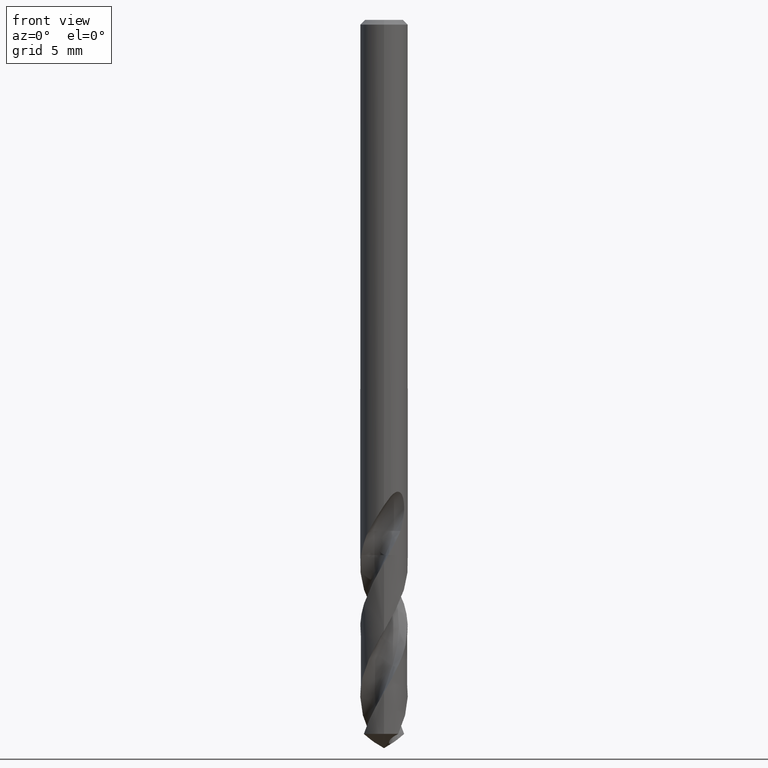
[diagram: clean part render]
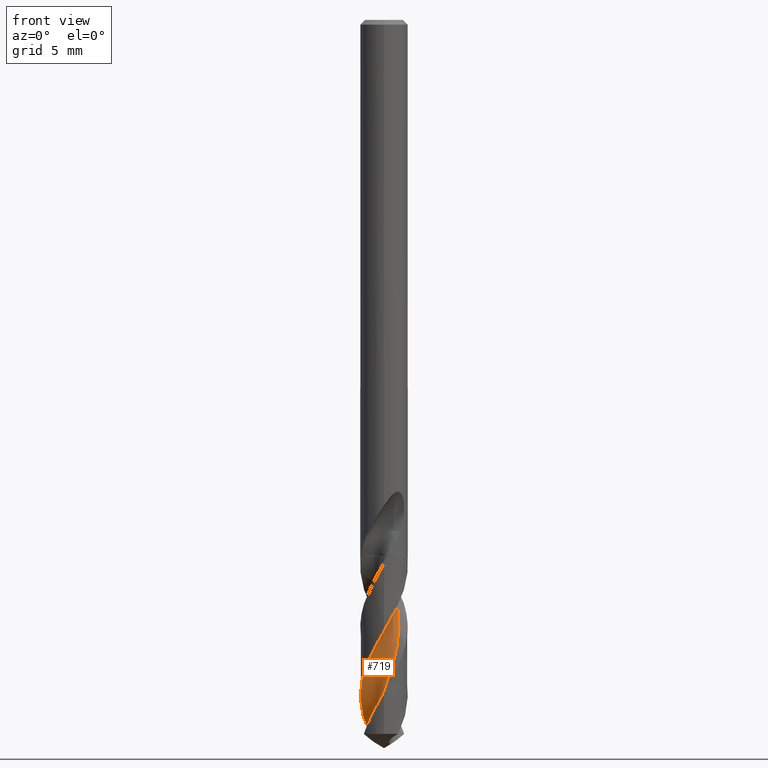
[diagram: same view with one face highlighted and labeled with its STEP entity id]
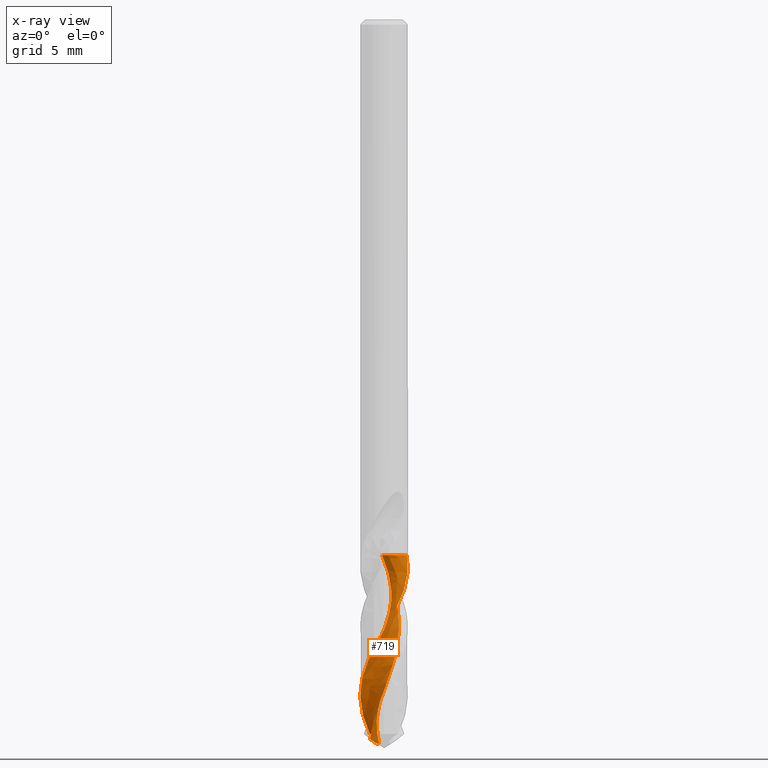
[diagram: x-ray of the same camera — body ghosted, the highlighted face saturated]
A machine part, front view. The second image highlights one B-rep face of the part: STEP entity #719.
The next image is the same camera in x-ray: the body ghosted, the highlighted face saturated — about 0% of this face is hidden behind the body in this view.
In plain terms, the highlighted face is a freeform B-spline surface patch.
Its self-contained STEP definition (entity closure, byte-faithful):
#313=VERTEX_POINT('',#808);
#391=VERTEX_POINT('',#895);
#421=EDGE_CURVE('',#603,#701,#930,.T.);
#461=EDGE_CURVE('',#701,#717,#971,.T.);
#537=EDGE_CURVE('',#313,#603,#1053,.T.);
#553=EDGE_CURVE('',#717,#391,#1070,.T.);
#603=VERTEX_POINT('',#1126);
#641=EDGE_CURVE('',#391,#313,#1167,.T.);
#701=VERTEX_POINT('',#1232);
#717=VERTEX_POINT('',#1250);
#719=ADVANCED_FACE('',(#1252),#1253,.F.);
#808=CARTESIAN_POINT('',(-0.875671009248674,-0.358797937121052,-45.4313890919469));
#895=CARTESIAN_POINT('',(-0.130612846565467,0.933550851839637,-33.805));
#930=B_SPLINE_CURVE_WITH_KNOTS('',3,(#2640,#2641,#2642,#2643,#2644,#2645,#2646,#2647,#2648,#2649,#2650,#2651,#2652,#2653,#2654,#2655,#2656,#2657,#2658,#2659,#2660,#2661,#2662,#2663,#2664,#2665,#2666,#2667,#2668,#2669,#2670,#2671,#2672,#2673,#2674,#2675,#2676,#2677,#2678,#2679,#2680,#2681,#2682,#2683,#2684,#2685,#2686,#2687,#2688,#2689,#2690,#2691,#2692,#2693,#2694,#2695,#2696,#2697,#2698,#2699,#2700,#2701,#2702,#2703,#2704,#2705,#2706,#2707,#2708,#2709,#2710,#2711),.UNSPECIFIED.,.F.,.F.,(4,2,2,2,2,2,2,2,2,2,2,2,2,2,2,2,2,2,2,2,2,2,2,2,2,2,2,2,2,2,2,2,2,2,2,4),(0.0,0.587548931270342,1.17219633530945,1.75708313733008,2.04868303654778,2.54372425060328,2.79175573145035,3.03846331591425,3.5338127022504,3.78198925935758,4.02889593470141,4.52456850894429,4.77291035589917,5.01998875941831,5.51600228871473,5.76453198042629,6.01182225928897,6.50821840966028,6.75696213142877,7.00450244078225,7.50135093124239,7.75032123867676,7.99810337937848,8.49541238624721,8.74462920359577,8.99267641956067,9.49050599480591,9.71589158313354,10.1366187539142,10.8767489687935,10.9112839413316,11.4568183166256,11.8662820788644,11.9045921760431,12.4995940372104,13.0926342426759),.UNSPECIFIED.);
#971=B_SPLINE_CURVE_WITH_KNOTS('',3,(#2834,#2835,#2836,#2837,#2838,#2839,#2840,#2841,#2842,#2843,#2844,#2845,#2846,#2847,#2848,#2849,#2850,#2851,#2852,#2853,#2854,#2855,#2856,#2857,#2858,#2859,#2860,#2861,#2862,#2863,#2864,#2865,#2866,#2867,#2868,#2869,#2870,#2871,#2872,#2873,#2874,#2875,#2876,#2877,#2878,#2879,#2880,#2881,#2882,#2883,#2884,#2885,#2886,#2887,#2888,#2889,#2890,#2891,#2892,#2893,#2894,#2895,#2896,#2897,#2898,#2899,#2900,#2901,#2902,#2903,#2904,#2905),.UNSPECIFIED.,.F.,.F.,(4,2,2,2,2,2,2,2,2,2,2,2,2,2,2,2,2,2,2,2,2,2,2,2,2,2,2,2,2,2,2,2,2,2,2,4),(0.0,0.587548931270342,1.17219633530945,1.75708313733008,2.04868303654778,2.54372425060328,2.79175573145035,3.03846331591425,3.5338127022504,3.78198925935758,4.02889593470141,4.52456850894429,4.77291035589917,5.01998875941831,5.51600228871473,5.76453198042629,6.01182225928897,6.50821840966028,6.75696213142877,7.00450244078225,7.50135093124239,7.75032123867676,7.99810337937848,8.49541238624721,8.74462920359577,8.99267641956067,9.49050599480591,9.71589158313354,10.1366187539142,10.8767489687935,10.9112839413316,11.4568183166256,11.8662820788644,11.9045921760431,12.4995940372104,13.0926342426759),.UNSPECIFIED.);
#1053=B_SPLINE_CURVE_WITH_KNOTS('',3,(#3696,#3697,#3698,#3699,#3700,#3701,#3702,#3703,#3704,#3705,#3706,#3707,#3708,#3709,#3710,#3711,#3712,#3713,#3714,#3715,#3716,#3717),.UNSPECIFIED.,.F.,.F.,(4,2,2,2,2,2,2,2,2,2,4),(0.0,0.514910052606813,1.01150946311538,1.40950740411287,1.76344501784753,2.215738572473,2.75041238733939,3.38622895188545,4.1169813170863,4.67060235264904,5.22109569334286),.UNSPECIFIED.);
#1070=B_SPLINE_CURVE_WITH_KNOTS('',3,(#3807,#3808,#3809,#3810,#3811,#3812,#3813,#3814,#3815,#3816,#3817,#3818,#3819,#3820,#3821,#3822,#3823,#3824,#3825,#3826),.UNSPECIFIED.,.F.,.F.,(4,2,2,2,2,2,2,2,2,4),(-3.15012089561457,-2.94171853489248,-2.73327283325108,-2.34242692870551,-1.95163046631387,-1.56106156288589,-1.17076573659799,-0.780627496579196,-0.390434775371609,-0.0),.UNSPECIFIED.);
#1126=CARTESIAN_POINT('',(-0.898964889177855,1.20077563600593,-45.0987090714587));
#1167=B_SPLINE_CURVE_WITH_KNOTS('',3,(#5006,#5007,#5008,#5009,#5010,#5011,#5012,#5013,#5014,#5015,#5016,#5017,#5018,#5019,#5020,#5021,#5022,#5023,#5024,#5025,#5026,#5027,#5028,#5029,#5030,#5031,#5032,#5033,#5034,#5035,#5036,#5037,#5038,#5039,#5040,#5041,#5042,#5043),.UNSPECIFIED.,.F.,.F.,(4,1,2,1,2,2,2,2,2,2,2,2,2,2,2,2,2,2,2,4),(0.0,0.27547260172825,0.550945203456499,1.101890406913,1.6528356103695,2.203780813826,3.30567122073899,4.40756162765199,5.50945203456499,6.61134244147799,7.71323284839099,8.81512325530399,9.91701366221698,11.01890406913,12.120794476043,13.222684882956,14.324575289869,15.426465696782,16.528356103695,17.630246510608),.UNSPECIFIED.);
#1232=CARTESIAN_POINT('',(6.46926910612253E-016,-1.49994239917647,-38.5905595988041));
#1250=CARTESIAN_POINT('',(1.44704588961921,0.394662310633732,-33.805));
#1252=FACE_OUTER_BOUND('',#5530,.T.);
#1253=B_SPLINE_SURFACE_WITH_KNOTS('',3,3,((#5531,#5532,#5533,#5534,#5535,#5536,#5537,#5538,#5539,#5540,#5541,#5542,#5543,#5544,#5545,#5546,#5547,#5548,#5549,#5550,#5551,#5552,#5553,#5554,#5555,#5556,#5557,#5558,#5559,#5560,#5561,#5562,#5563,#5564,#5565,#5566,#5567,#5568),(#5569,#5570,#5571,#5572,#5573,#5574,#5575,#5576,#5577,#5578,#5579,#5580,#5581,#5582,#5583,#5584,#5585,#5586,#5587,#5588,#5589,#5590,#5591,#5592,#5593,#5594,#5595,#5596,#5597,#5598,#5599,#5600,#5601,#5602,#5603,#5604,#5605,#5606),(#5607,#5608,#5609,#5610,#5611,#5612,#5613,#5614,#5615,#5616,#5617,#5618,#5619,#5620,#5621,#5622,#5623,#5624,#5625,#5626,#5627,#5628,#5629,#5630,#5631,#5632,#5633,#5634,#5635,#5636,#5637,#5638,#5639,#5640,#5641,#5642,#5643,#5644),(#5645,#5646,#5647,#5648,#5649,#5650,#5651,#5652,#5653,#5654,#5655,#5656,#5657,#5658,#5659,#5660,#5661,#5662,#5663,#5664,#5665,#5666,#5667,#5668,#5669,#5670,#5671,#5672,#5673,#5674,#5675,#5676,#5677,#5678,#5679,#5680,#5681,#5682),(#5683,#5684,#5685,#5686,#5687,#5688,#5689,#5690,#5691,#5692,#5693,#5694,#5695,#5696,#5697,#5698,#5699,#5700,#5701,#5702,#5703,#5704,#5705,#5706,#5707,#5708,#5709,#5710,#5711,#5712,#5713,#5714,#5715,#5716,#5717,#5718,#5719,#5720),(#5721,#5722,#5723,#5724,#5725,#5726,#5727,#5728,#5729,#5730,#5731,#5732,#5733,#5734,#5735,#5736,#5737,#5738,#5739,#5740,#5741,#5742,#5743,#5744,#5745,#5746,#5747,#5748,#5749,#5750,#5751,#5752,#5753,#5754,#5755,#5756,#5757,#5758),(#5759,#5760,#5761,#5762,#5763,#5764,#5765,#5766,#5767,#5768,#5769,#5770,#5771,#5772,#5773,#5774,#5775,#5776,#5777,#5778,#5779,#5780,#5781,#5782,#5783,#5784,#5785,#5786,#5787,#5788,#5789,#5790,#5791,#5792,#5793,#5794,#5795,#5796),(#5797,#5798,#5799,#5800,#5801,#5802,#5803,#5804,#5805,#5806,#5807,#5808,#5809,#5810,#5811,#5812,#5813,#5814,#5815,#5816,#5817,#5818,#5819,#5820,#5821,#5822,#5823,#5824,#5825,#5826,#5827,#5828,#5829,#5830,#5831,#5832,#5833,#5834),(#5835,#5836,#5837,#5838,#5839,#5840,#5841,#5842,#5843,#5844,#5845,#5846,#5847,#5848,#5849,#5850,#5851,#5852,#5853,#5854,#5855,#5856,#5857,#5858,#5859,#5860,#5861,#5862,#5863,#5864,#5865,#5866,#5867,#5868,#5869,#5870,#5871,#5872)),.UNSPECIFIED.,.F.,.F.,.F.,(4,1,1,1,1,1,4),(4,1,2,1,2,2,2,2,2,2,2,2,2,2,2,2,2,2,2,4),(-4.49266275223681E-017,0.589053925849164,1.17810785169833,1.76716177754749,2.35621570339666,2.74891832062943,3.14162093786221),(0.0,0.27547260172825,0.550945203456499,1.101890406913,1.6528356103695,2.203780813826,3.30567122073899,4.40756162765199,5.50945203456499,6.61134244147799,7.71323284839099,8.81512325530399,9.91701366221698,11.01890406913,12.120794476043,13.222684882956,14.324575289869,15.426465696782,16.528356103695,17.630246510608),.UNSPECIFIED.);
#2640=CARTESIAN_POINT('',(-0.898964889177857,1.20077563600593,-45.0987090714586));
#2641=CARTESIAN_POINT('',(-0.97680051497333,1.14250184227968,-44.9287006502512));
#2642=CARTESIAN_POINT('',(-1.04899950517055,1.07664198458802,-44.760009289105));
#2643=CARTESIAN_POINT('',(-1.17960625681869,0.931656461997672,-44.42164619341));
#2644=CARTESIAN_POINT('',(-1.23753883157774,0.853196197475255,-44.2525407343408));
#2645=CARTESIAN_POINT('',(-1.33741667374212,0.686120646854864,-43.9148704593237));
#2646=CARTESIAN_POINT('',(-1.37908841830142,0.597941942158084,-43.7471042262633));
#2647=CARTESIAN_POINT('',(-1.4282821581116,0.46077942917842,-43.4939923568902));
#2648=CARTESIAN_POINT('',(-1.44240265633494,0.41445225558287,-43.409545977214));
#2649=CARTESIAN_POINT('',(-1.47438282298118,0.287908378341074,-43.1825042793626));
#2650=CARTESIAN_POINT('',(-1.4879592770025,0.206654464999807,-43.0403663331367));
#2651=CARTESIAN_POINT('',(-1.49822499090967,0.0834531398252047,-42.8261355034431));
#2652=CARTESIAN_POINT('',(-1.499949280934,0.0422515800755956,-42.7546958456908));
#2653=CARTESIAN_POINT('',(-1.50000703161533,-0.0398761499811478,-42.6119544502924));
#2654=CARTESIAN_POINT('',(-1.4983605825769,-0.0807570891444613,-42.5406123359207));
#2655=CARTESIAN_POINT('',(-1.48838702718813,-0.20341905544537,-42.3265747469618));
#2656=CARTESIAN_POINT('',(-1.4750066872415,-0.284713847587108,-42.1844254457083));
#2657=CARTESIAN_POINT('',(-1.444952833217,-0.404637051639245,-41.9701911215027));
#2658=CARTESIAN_POINT('',(-1.43328487118696,-0.444190133844933,-41.8987510738584));
#2659=CARTESIAN_POINT('',(-1.40682515142878,-0.521950471361771,-41.7559961111617));
#2660=CARTESIAN_POINT('',(-1.3920665058254,-0.560120264929224,-41.6846391224045));
#2661=CARTESIAN_POINT('',(-1.34302809932136,-0.67299910080611,-41.4705891495833));
#2662=CARTESIAN_POINT('',(-1.30412116594084,-0.745622001116701,-41.3284420351136));
#2663=CARTESIAN_POINT('',(-1.23696182315081,-0.849424895542258,-41.114208133952));
#2664=CARTESIAN_POINT('',(-1.21314940473115,-0.883094725607306,-41.0427678718062));
#2665=CARTESIAN_POINT('',(-1.16300153244408,-0.948153052115347,-40.9000098708445));
#2666=CARTESIAN_POINT('',(-1.13671050977985,-0.979515149503481,-40.8286491660727));
#2667=CARTESIAN_POINT('',(-1.0538692709104,-1.07050794713356,-40.6146068254887));
#2668=CARTESIAN_POINT('',(-0.993608762178671,-1.12667740866116,-40.4724654755174));
#2669=CARTESIAN_POINT('',(-0.896542569677424,-1.20323973328172,-40.2582390182976));
#2670=CARTESIAN_POINT('',(-0.863136115235632,-1.22742053153003,-40.1867983723811));
#2671=CARTESIAN_POINT('',(-0.794666998841231,-1.2728113827446,-40.044033234631));
#2672=CARTESIAN_POINT('',(-0.75965587434954,-1.29400959853728,-39.9726648848031));
#2673=CARTESIAN_POINT('',(-0.651885633110519,-1.35338411167316,-39.7586254436777));
#2674=CARTESIAN_POINT('',(-0.576725541532742,-1.38709219695815,-39.6164895957228));
#2675=CARTESIAN_POINT('',(-0.460142323313087,-1.42822299616722,-39.4022714678663));
#2676=CARTESIAN_POINT('',(-0.420715554240283,-1.44032675797497,-39.3308298359745));
#2677=CARTESIAN_POINT('',(-0.341245180277532,-1.46118934906237,-39.1880536700131));
#2678=CARTESIAN_POINT('',(-0.301255077603228,-1.46995269923641,-39.1166748236996));
#2679=CARTESIAN_POINT('',(-0.180081174235621,-1.4913590230446,-38.9026272309329));
#2680=CARTESIAN_POINT('',(-0.0980620569516919,-1.49899913712707,-38.7604898596996));
#2681=CARTESIAN_POINT('',(0.0255589480621662,-1.50029195322154,-38.5462702603326));
#2682=CARTESIAN_POINT('',(0.0667827901402179,-1.49901972505034,-38.4748280955575));
#2683=CARTESIAN_POINT('',(0.14873725976908,-1.49310996418542,-38.332046415851));
#2684=CARTESIAN_POINT('',(0.189417508808789,-1.48849372467311,-38.260661409841));
#2685=CARTESIAN_POINT('',(0.311000155205718,-1.46963783787386,-38.0466189270658));
#2686=CARTESIAN_POINT('',(0.3910864872675,-1.45039385765524,-37.9044896546809));
#2687=CARTESIAN_POINT('',(0.50850146284557,-1.41171269623181,-37.6902794354106));
#2688=CARTESIAN_POINT('',(0.547108099145057,-1.39720083214361,-37.6188379180603));
#2689=CARTESIAN_POINT('',(0.62277212328948,-1.36514931304266,-37.4760521222374));
#2690=CARTESIAN_POINT('',(0.659787455877121,-1.34764612605175,-37.4046621941733));
#2691=CARTESIAN_POINT('',(0.768763385065674,-1.29055616728636,-37.190621024301));
#2692=CARTESIAN_POINT('',(0.838344170148439,-1.24649363682489,-37.0484883873936));
#2693=CARTESIAN_POINT('',(0.933800336157714,-1.17438818343929,-36.8411888840559));
#2694=CARTESIAN_POINT('',(0.962674984513003,-1.15083493540402,-36.7766357333918));
#2695=CARTESIAN_POINT('',(1.04278539681656,-1.08036999654646,-36.5913307180151));
#2696=CARTESIAN_POINT('',(1.09168971123947,-1.03093125770766,-36.4702198312003));
#2697=CARTESIAN_POINT('',(1.21680972009154,-0.885493219794315,-36.1372374930305));
#2698=CARTESIAN_POINT('',(1.28481182479457,-0.783502528987614,-35.9272110466073));
#2699=CARTESIAN_POINT('',(1.34219862977338,-0.669541467751293,-35.7048088401136));
#2700=CARTESIAN_POINT('',(1.34472785055659,-0.664447030786116,-35.6948916879763));
#2701=CARTESIAN_POINT('',(1.38683696613274,-0.578399694530261,-35.5279513335844));
#2702=CARTESIAN_POINT('',(1.41914362427917,-0.493919340595869,-35.3718418395616));
#2703=CARTESIAN_POINT('',(1.46209588683412,-0.341496953172587,-35.0974388464266));
#2704=CARTESIAN_POINT('',(1.47602097648899,-0.275084146809685,-34.9801132783758));
#2705=CARTESIAN_POINT('',(1.4862843205446,-0.201809103471986,-34.8513019287721));
#2706=CARTESIAN_POINT('',(1.48712177514399,-0.195541825623319,-34.8402881241922));
#2707=CARTESIAN_POINT('',(1.50033715041613,-0.0916304465632763,-34.6579549081476));
#2708=CARTESIAN_POINT('',(1.50312993565743,0.0070799866210474,-34.4881076791453));
#2709=CARTESIAN_POINT('',(1.48927454659307,0.203563068856034,-34.1464777594349));
#2710=CARTESIAN_POINT('',(1.47279008386338,0.300286346791669,-33.9748172647512));
#2711=CARTESIAN_POINT('',(1.44703474905601,0.394703148990546,-33.8049265146903));
#2834=CARTESIAN_POINT('',(-0.898964889177857,1.20077563600593,-45.0987090714586));
#2835=CARTESIAN_POINT('',(-0.97680051497333,1.14250184227968,-44.9287006502512));
#2836=CARTESIAN_POINT('',(-1.04899950517055,1.07664198458802,-44.760009289105));
#2837=CARTESIAN_POINT('',(-1.17960625681869,0.931656461997672,-44.42164619341));
#2838=CARTESIAN_POINT('',(-1.23753883157774,0.853196197475255,-44.2525407343408));
#2839=CARTESIAN_POINT('',(-1.33741667374212,0.686120646854864,-43.9148704593237));
#2840=CARTESIAN_POINT('',(-1.37908841830142,0.597941942158084,-43.7471042262633));
#2841=CARTESIAN_POINT('',(-1.4282821581116,0.46077942917842,-43.4939923568902));
#2842=CARTESIAN_POINT('',(-1.44240265633494,0.41445225558287,-43.409545977214));
#2843=CARTESIAN_POINT('',(-1.47438282298118,0.287908378341074,-43.1825042793626));
#2844=CARTESIAN_POINT('',(-1.4879592770025,0.206654464999807,-43.0403663331367));
#2845=CARTESIAN_POINT('',(-1.49822499090967,0.0834531398252047,-42.8261355034431));
#2846=CARTESIAN_POINT('',(-1.499949280934,0.0422515800755956,-42.7546958456908));
#2847=CARTESIAN_POINT('',(-1.50000703161533,-0.0398761499811478,-42.6119544502924));
#2848=CARTESIAN_POINT('',(-1.4983605825769,-0.0807570891444613,-42.5406123359207));
#2849=CARTESIAN_POINT('',(-1.48838702718813,-0.20341905544537,-42.3265747469618));
#2850=CARTESIAN_POINT('',(-1.4750066872415,-0.284713847587108,-42.1844254457083));
#2851=CARTESIAN_POINT('',(-1.444952833217,-0.404637051639245,-41.9701911215027));
#2852=CARTESIAN_POINT('',(-1.43328487118696,-0.444190133844933,-41.8987510738584));
#2853=CARTESIAN_POINT('',(-1.40682515142878,-0.521950471361771,-41.7559961111617));
#2854=CARTESIAN_POINT('',(-1.3920665058254,-0.560120264929224,-41.6846391224045));
#2855=CARTESIAN_POINT('',(-1.34302809932136,-0.67299910080611,-41.4705891495833));
#2856=CARTESIAN_POINT('',(-1.30412116594084,-0.745622001116701,-41.3284420351136));
#2857=CARTESIAN_POINT('',(-1.23696182315081,-0.849424895542258,-41.114208133952));
#2858=CARTESIAN_POINT('',(-1.21314940473115,-0.883094725607306,-41.0427678718062));
#2859=CARTESIAN_POINT('',(-1.16300153244408,-0.948153052115347,-40.9000098708445));
#2860=CARTESIAN_POINT('',(-1.13671050977985,-0.979515149503481,-40.8286491660727));
#2861=CARTESIAN_POINT('',(-1.0538692709104,-1.07050794713356,-40.6146068254887));
#2862=CARTESIAN_POINT('',(-0.993608762178671,-1.12667740866116,-40.4724654755174));
#2863=CARTESIAN_POINT('',(-0.896542569677424,-1.20323973328172,-40.2582390182976));
#2864=CARTESIAN_POINT('',(-0.863136115235632,-1.22742053153003,-40.1867983723811));
#2865=CARTESIAN_POINT('',(-0.794666998841231,-1.2728113827446,-40.044033234631));
#2866=CARTESIAN_POINT('',(-0.75965587434954,-1.29400959853728,-39.9726648848031));
#2867=CARTESIAN_POINT('',(-0.651885633110519,-1.35338411167316,-39.7586254436777));
#2868=CARTESIAN_POINT('',(-0.576725541532742,-1.38709219695815,-39.6164895957228));
#2869=CARTESIAN_POINT('',(-0.460142323313087,-1.42822299616722,-39.4022714678663));
#2870=CARTESIAN_POINT('',(-0.420715554240283,-1.44032675797497,-39.3308298359745));
#2871=CARTESIAN_POINT('',(-0.341245180277532,-1.46118934906237,-39.1880536700131));
#2872=CARTESIAN_POINT('',(-0.301255077603228,-1.46995269923641,-39.1166748236996));
#2873=CARTESIAN_POINT('',(-0.180081174235621,-1.4913590230446,-38.9026272309329));
#2874=CARTESIAN_POINT('',(-0.0980620569516919,-1.49899913712707,-38.7604898596996));
#2875=CARTESIAN_POINT('',(0.0255589480621662,-1.50029195322154,-38.5462702603326));
#2876=CARTESIAN_POINT('',(0.0667827901402179,-1.49901972505034,-38.4748280955575));
#2877=CARTESIAN_POINT('',(0.14873725976908,-1.49310996418542,-38.332046415851));
#2878=CARTESIAN_POINT('',(0.189417508808789,-1.48849372467311,-38.260661409841));
#2879=CARTESIAN_POINT('',(0.311000155205718,-1.46963783787386,-38.0466189270658));
#2880=CARTESIAN_POINT('',(0.3910864872675,-1.45039385765524,-37.9044896546809));
#2881=CARTESIAN_POINT('',(0.50850146284557,-1.41171269623181,-37.6902794354106));
#2882=CARTESIAN_POINT('',(0.547108099145057,-1.39720083214361,-37.6188379180603));
#2883=CARTESIAN_POINT('',(0.62277212328948,-1.36514931304266,-37.4760521222374));
#2884=CARTESIAN_POINT('',(0.659787455877121,-1.34764612605175,-37.4046621941733));
#2885=CARTESIAN_POINT('',(0.768763385065674,-1.29055616728636,-37.190621024301));
#2886=CARTESIAN_POINT('',(0.838344170148439,-1.24649363682489,-37.0484883873936));
#2887=CARTESIAN_POINT('',(0.933800336157714,-1.17438818343929,-36.8411888840559));
#2888=CARTESIAN_POINT('',(0.962674984513003,-1.15083493540402,-36.7766357333918));
#2889=CARTESIAN_POINT('',(1.04278539681656,-1.08036999654646,-36.5913307180151));
#2890=CARTESIAN_POINT('',(1.09168971123947,-1.03093125770766,-36.4702198312003));
#2891=CARTESIAN_POINT('',(1.21680972009154,-0.885493219794315,-36.1372374930305));
#2892=CARTESIAN_POINT('',(1.28481182479457,-0.783502528987614,-35.9272110466073));
#2893=CARTESIAN_POINT('',(1.34219862977338,-0.669541467751293,-35.7048088401136));
#2894=CARTESIAN_POINT('',(1.34472785055659,-0.664447030786116,-35.6948916879763));
#2895=CARTESIAN_POINT('',(1.38683696613274,-0.578399694530261,-35.5279513335844));
#2896=CARTESIAN_POINT('',(1.41914362427917,-0.493919340595869,-35.3718418395616));
#2897=CARTESIAN_POINT('',(1.46209588683412,-0.341496953172587,-35.0974388464266));
#2898=CARTESIAN_POINT('',(1.47602097648899,-0.275084146809685,-34.9801132783758));
#2899=CARTESIAN_POINT('',(1.4862843205446,-0.201809103471986,-34.8513019287721));
#2900=CARTESIAN_POINT('',(1.48712177514399,-0.195541825623319,-34.8402881241922));
#2901=CARTESIAN_POINT('',(1.50033715041613,-0.0916304465632763,-34.6579549081476));
#2902=CARTESIAN_POINT('',(1.50312993565743,0.0070799866210474,-34.4881076791453));
#2903=CARTESIAN_POINT('',(1.48927454659307,0.203563068856034,-34.1464777594349));
#2904=CARTESIAN_POINT('',(1.47279008386338,0.300286346791669,-33.9748172647512));
#2905=CARTESIAN_POINT('',(1.44703474905601,0.394703148990546,-33.8049265146903));
#3696=CARTESIAN_POINT('',(-0.875671009247426,-0.358797937113537,-45.4313890919582));
#3697=CARTESIAN_POINT('',(-0.762394592720034,-0.261883547729165,-45.5164491057891));
#3698=CARTESIAN_POINT('',(-0.663636866042526,-0.157683387603503,-45.5935077298115));
#3699=CARTESIAN_POINT('',(-0.508481000104575,0.0309237193766516,-45.6981087675568));
#3700=CARTESIAN_POINT('',(-0.461296888128593,0.101581384603863,-45.7189724919329));
#3701=CARTESIAN_POINT('',(-0.400056312024145,0.205730284172242,-45.7315774113961));
#3702=CARTESIAN_POINT('',(-0.372098316382209,0.259358015652461,-45.7300204617036));
#3703=CARTESIAN_POINT('',(-0.330771059161198,0.380431461213681,-45.6989061845101));
#3704=CARTESIAN_POINT('',(-0.319676701878759,0.437123090262503,-45.6751982182504));
#3705=CARTESIAN_POINT('',(-0.312919896621145,0.564025410480583,-45.613246146999));
#3706=CARTESIAN_POINT('',(-0.321977104717148,0.640487467604434,-45.5693055565054));
#3707=CARTESIAN_POINT('',(-0.380630595656338,0.810484170897362,-45.4620271651362));
#3708=CARTESIAN_POINT('',(-0.433541416744456,0.894075292453429,-45.4031833201958));
#3709=CARTESIAN_POINT('',(-0.582195570731866,1.05077593511977,-45.2784592910763));
#3710=CARTESIAN_POINT('',(-0.682969724091376,1.11777973887785,-45.2139320697534));
#3711=CARTESIAN_POINT('',(-0.923923950471707,1.21795077033381,-45.0825834310444));
#3712=CARTESIAN_POINT('',(-1.06541087509547,1.24343932344415,-45.0181175406405));
#3713=CARTESIAN_POINT('',(-1.31818249289213,1.24032915722684,-44.9134914975687));
#3714=CARTESIAN_POINT('',(-1.42786762101232,1.22337077510785,-44.8715232744687));
#3715=CARTESIAN_POINT('',(-1.64081073583931,1.16036130569826,-44.7936893660185));
#3716=CARTESIAN_POINT('',(-1.74361840595676,1.11462077147536,-44.7579727383942));
#3717=CARTESIAN_POINT('',(-1.8398441812044,1.05592300329539,-44.725382145213));
#3807=CARTESIAN_POINT('',(1.80383181966245,1.43910312051123,-33.805));
#3808=CARTESIAN_POINT('',(1.82137326530414,1.37188630443031,-33.805));
#3809=CARTESIAN_POINT('',(1.83185954615194,1.30302354209988,-33.805));
#3810=CARTESIAN_POINT('',(1.83838820039709,1.16422632422423,-33.805));
#3811=CARTESIAN_POINT('',(1.83440985477781,1.09466856458912,-33.8050000000001));
#3812=CARTESIAN_POINT('',(1.80234100821017,0.897493329863487,-33.8050000000001));
#3813=CARTESIAN_POINT('',(1.75650333308705,0.774211560923344,-33.805));
#3814=CARTESIAN_POINT('',(1.62017225695938,0.552173279559869,-33.805));
#3815=CARTESIAN_POINT('',(1.53098259132315,0.455527819342332,-33.805));
#3816=CARTESIAN_POINT('',(1.3206485093307,0.301910745116998,-33.805));
#3817=CARTESIAN_POINT('',(1.20152579808464,0.246379124585178,-33.805));
#3818=CARTESIAN_POINT('',(0.948790703783132,0.18412626122166,-33.805));
#3819=CARTESIAN_POINT('',(0.817601671594048,0.17796563929787,-33.805));
#3820=CARTESIAN_POINT('',(0.560294897149492,0.216274363456344,-33.805));
#3821=CARTESIAN_POINT('',(0.43664016721869,0.260356607443084,-33.805));
#3822=CARTESIAN_POINT('',(0.213166662914921,0.393455556843573,-33.805));
#3823=CARTESIAN_POINT('',(0.115496966517367,0.481200642321611,-33.805));
#3824=CARTESIAN_POINT('',(-0.0407642834491608,0.689263059460275,-33.805));
#3825=CARTESIAN_POINT('',(-0.0978311171118103,0.807602212507861,-33.805));
#3826=CARTESIAN_POINT('',(-0.130612846565481,0.93355085183963,-33.805));
#5006=CARTESIAN_POINT('',(-0.707106781115836,0.742893218884162,-32.273));
#5007=CARTESIAN_POINT('',(-0.647501877190094,0.738575108101767,-32.3444082840833));
#5008=CARTESIAN_POINT('',(-0.55095568396901,0.741708175097488,-32.4869174552742));
#5009=CARTESIAN_POINT('',(-0.499762990472203,0.765752944721311,-32.6292487087978));
#5010=CARTESIAN_POINT('',(-0.453448947077492,0.820323834792766,-32.8441286671087));
#5011=CARTESIAN_POINT('',(-0.37423931183685,0.880202541181962,-33.1311199037873));
#5012=CARTESIAN_POINT('',(-0.272851609235657,0.910864623298635,-33.4174441801228));
#5013=CARTESIAN_POINT('',(-0.167389068119662,0.929059139367556,-33.7028053615337));
#5014=CARTESIAN_POINT('',(-0.115631514012157,0.936045389285502,-33.8456110139239));
#5015=CARTESIAN_POINT('',(0.0369767766284428,0.951744268823109,-34.2751926551789));
#5016=CARTESIAN_POINT('',(0.142934141298866,0.938868427610888,-34.5614836832146));
#5017=CARTESIAN_POINT('',(0.34322369318255,0.887528865096183,-35.1334356258724));
#5018=CARTESIAN_POINT('',(0.438983296568397,0.841176632322965,-35.4194699963939));
#5019=CARTESIAN_POINT('',(0.611999798555617,0.728917393791683,-35.9917331827699));
#5020=CARTESIAN_POINT('',(0.687632048128986,0.653909314294699,-36.277844196127));
#5021=CARTESIAN_POINT('',(0.814941952667144,0.491528878494364,-36.8500172631472));
#5022=CARTESIAN_POINT('',(0.86225950062726,0.396147926152737,-37.1361090726611));
#5023=CARTESIAN_POINT('',(0.930199386916016,0.201346704872947,-37.7083069449892));
#5024=CARTESIAN_POINT('',(0.944082508927404,0.0957676471612639,-37.9944037799709));
#5025=CARTESIAN_POINT('',(0.945295195808553,-0.110548312927489,-38.5665915187233));
#5026=CARTESIAN_POINT('',(0.924260165128404,-0.214936545109538,-38.8526875482023));
#5027=CARTESIAN_POINT('',(0.858603285522037,-0.410543214951842,-39.4248806681811));
#5028=CARTESIAN_POINT('',(0.804919361990755,-0.502503616622624,-39.7109757262735));
#5029=CARTESIAN_POINT('',(0.679544475287585,-0.666347106487914,-40.2831688398779));
#5030=CARTESIAN_POINT('',(0.598989137186181,-0.735986902126471,-40.5692648380603));
#5031=CARTESIAN_POINT('',(0.427316273513943,-0.850420974194221,-41.1414545175323));
#5032=CARTESIAN_POINT('',(0.328548390906141,-0.890231839523414,-41.4275508661802));
#5033=CARTESIAN_POINT('',(0.129054478942464,-0.942913048894076,-41.9997399596215));
#5034=CARTESIAN_POINT('',(0.0227307247095865,-0.948631484982587,-42.2858352973619));
#5035=CARTESIAN_POINT('',(-0.183065299754877,-0.93395707725087,-42.8580417026815));
#5036=CARTESIAN_POINT('',(-0.285527260011215,-0.904919904903997,-43.1441352723218));
#5037=CARTESIAN_POINT('',(-0.475477477430966,-0.824536072004853,-43.7162785822764));
#5038=CARTESIAN_POINT('',(-0.563043141798234,-0.763940016837552,-44.0023850369442));
#5039=CARTESIAN_POINT('',(-0.716560743814627,-0.62563604609717,-44.5746929795762));
#5040=CARTESIAN_POINT('',(-0.779794941371442,-0.540166977327708,-44.8607350060167));
#5041=CARTESIAN_POINT('',(-0.88238852211707,-0.362739132460079,-45.4325579826336));
#5042=CARTESIAN_POINT('',(-0.913291647864725,-0.259588401174233,-45.7186850770877));
#5043=CARTESIAN_POINT('',(-0.927268313918965,-0.154918881097839,-46.0045080672615));
#5530=EDGE_LOOP('',(#6811,#6812,#6813,#6814,#6815));
#5531=CARTESIAN_POINT('',(0.707106781115838,2.15710678111584,-32.273));
#5532=CARTESIAN_POINT('',(0.764626554808144,2.15487379721797,-32.3444616506656));
#5533=CARTESIAN_POINT('',(0.880890664052193,2.13886870250353,-32.4880600572313));
#5534=CARTESIAN_POINT('',(0.997208029039228,2.09362070822593,-32.6321003570538));
#5535=CARTESIAN_POINT('',(1.16716832335509,1.99939957617445,-32.846481929417));
#5536=CARTESIAN_POINT('',(1.38182515899695,1.85762829295938,-33.1314270018385));
#5537=CARTESIAN_POINT('',(1.57235914790284,1.68949517463878,-33.4173075251483));
#5538=CARTESIAN_POINT('',(1.74930708621826,1.50986034555815,-33.7042392454034));
#5539=CARTESIAN_POINT('',(1.83011967754428,1.41209960510676,-33.8475529090452));
#5540=CARTESIAN_POINT('',(2.04425035232824,1.0970957514439,-34.2761993780781));
#5541=CARTESIAN_POINT('',(2.15378539726979,0.865231768062457,-34.5620808972319));
#5542=CARTESIAN_POINT('',(2.28937328178486,0.376236976127867,-35.1345431044455));
#5543=CARTESIAN_POINT('',(2.31819662215524,0.121619123619613,-35.4207065114069));
#5544=CARTESIAN_POINT('',(2.28788961195336,-0.384892568121269,-35.992817371944));
#5545=CARTESIAN_POINT('',(2.23275919950378,-0.635181053915538,-36.2788964522093));
#5546=CARTESIAN_POINT('',(2.04020046837939,-1.1046811979355,-36.851108965624));
#5547=CARTESIAN_POINT('',(1.90701602442096,-1.32363940476513,-37.137209151111));
#5548=CARTESIAN_POINT('',(1.57284961971456,-1.70552470916843,-37.7093936947234));
#5549=CARTESIAN_POINT('',(1.37596753424901,-1.8695959330285,-37.9954883635889));
#5550=CARTESIAN_POINT('',(0.93619334484309,-2.12277818147313,-38.5676842863567));
#5551=CARTESIAN_POINT('',(0.696810898612974,-2.21429537492684,-38.8537798131259));
#5552=CARTESIAN_POINT('',(0.198775969194053,-2.31153507501615,-39.4259697509485));
#5553=CARTESIAN_POINT('',(-0.0573451235657023,-2.32065815653366,-39.7120664330084));
#5554=CARTESIAN_POINT('',(-0.560055457930142,-2.25145000877416,-40.284256210237));
#5555=CARTESIAN_POINT('',(-0.805342704296675,-2.17717825743763,-40.5703516042318));
#5556=CARTESIAN_POINT('',(-1.25859303913231,-1.94899434458879,-41.1425458669967));
#5557=CARTESIAN_POINT('',(-1.46663756600524,-1.79933829553152,-41.4286417554307));
#5558=CARTESIAN_POINT('',(-1.82164995672529,-1.43676788539935,-42.0008343146482));
#5559=CARTESIAN_POINT('',(-1.97006383235477,-1.22783352007514,-42.2869280882298));
#5560=CARTESIAN_POINT('',(-2.18861400075472,-0.769848551227715,-42.8591103147502));
#5561=CARTESIAN_POINT('',(-2.26143039645176,-0.524115051332424,-43.1452183192362));
#5562=CARTESIAN_POINT('',(-2.31992951544238,-0.0200640263254854,-43.7174338249441));
#5563=CARTESIAN_POINT('',(-2.30925060109336,0.235938859929483,-44.0034779586703));
#5564=CARTESIAN_POINT('',(-2.20188696958472,0.731853535637646,-44.5755975436179));
#5565=CARTESIAN_POINT('',(-2.10894527762981,0.970923577340858,-44.8618511755316));
#5566=CARTESIAN_POINT('',(-1.84490898271755,1.40462091453657,-45.4340124288581));
#5567=CARTESIAN_POINT('',(-1.68031043391723,1.59981499790919,-45.7195334094837));
#5568=CARTESIAN_POINT('',(-1.48909357584675,1.76454752635549,-46.0055496612293));
#5569=CARTESIAN_POINT('',(0.845943144232304,2.01826046089163,-32.273));
#5570=CARTESIAN_POINT('',(0.903667634020115,2.01623217827661,-32.3444675215814));
#5571=CARTESIAN_POINT('',(1.01805280795064,1.99829134700763,-32.4881857555542));
#5572=CARTESIAN_POINT('',(1.12756667748911,1.94664966894329,-32.6324140688195));
#5573=CARTESIAN_POINT('',(1.28291888444886,1.84029011945368,-32.8467408131413));
#5574=CARTESIAN_POINT('',(1.47777845499786,1.68522212170494,-33.1314607860908));
#5575=CARTESIAN_POINT('',(1.64879524885225,1.50833766676024,-33.4172924914397));
#5576=CARTESIAN_POINT('',(1.80632079880027,1.32168538484527,-33.7043969881032));
#5577=CARTESIAN_POINT('',(1.87684956011102,1.22107250985154,-33.8477665393171));
#5578=CARTESIAN_POINT('',(2.05851322609126,0.90002985865087,-34.2763101260543));
#5579=CARTESIAN_POINT('',(2.14654897349204,0.667815388597221,-34.5621465988234));
#5580=CARTESIAN_POINT('',(2.23916995480789,0.185174288824999,-35.1346649371917));
#5581=CARTESIAN_POINT('',(2.24754690030874,-0.0628713003255919,-35.4208425408505));
#5582=CARTESIAN_POINT('',(2.17853464377737,-0.549420183600913,-35.9929366446718));
#5583=CARTESIAN_POINT('',(2.10619642804586,-0.786870340203081,-36.27901220989));
#5584=CARTESIAN_POINT('',(1.88348715114618,-1.22496607843506,-36.851229066215));
#5585=CARTESIAN_POINT('',(1.73817107147552,-1.42620294344577,-37.1373301685265));
#5586=CARTESIAN_POINT('',(1.38563899558901,-1.76861053998097,-37.7095132516912));
#5587=CARTESIAN_POINT('',(1.18301515344331,-1.91198954575158,-37.9956076747114));
#5588=CARTESIAN_POINT('',(0.73864139928215,-2.12187744965337,-38.5678045070563));
#5589=CARTESIAN_POINT('',(0.500523352754979,-2.19195829256624,-38.8538999718096));
#5590=CARTESIAN_POINT('',(0.0121472015391059,-2.24674934341726,-39.4260895637367));
#5591=CARTESIAN_POINT('',(-0.235840564734571,-2.23599831745978,-39.7121864246041));
#5592=CARTESIAN_POINT('',(-0.715669562041157,-2.12974584955313,-40.2843758303153));
#5593=CARTESIAN_POINT('',(-0.946827612820033,-2.0393019454951,-40.5704711687798));
#5594=CARTESIAN_POINT('',(-1.36644020505664,-1.78347519728816,-41.1426659183606));
#5595=CARTESIAN_POINT('',(-1.55588330695544,-1.62309151628645,-41.4287617633357));
#5596=CARTESIAN_POINT('',(-1.87012754333772,-1.24525445376501,-42.0009547068815));
#5597=CARTESIAN_POINT('',(-1.99746759404565,-1.03218862580283,-42.2870483092357));
#5598=CARTESIAN_POINT('',(-2.1724954151127,-0.572953086152789,-42.8592278710796));
#5599=CARTESIAN_POINT('',(-2.22403761060509,-0.330130828322193,-43.1453374656872));
#5600=CARTESIAN_POINT('',(-2.24094339027603,0.161013390787787,-43.7175609141809));
#5601=CARTESIAN_POINT('',(-2.21108063466219,0.407370358743757,-44.0035981822659));
#5602=CARTESIAN_POINT('',(-2.06860928790989,0.877671596873235,-44.5756970647267));
#5603=CARTESIAN_POINT('',(-1.96058825549153,1.10140840838039,-44.8619739587793));
#5604=CARTESIAN_POINT('',(-1.6713938175733,1.49911066102447,-45.4341724407114));
#5605=CARTESIAN_POINT('',(-1.49775957590342,1.67511098685946,-45.7196267297421));
#5606=CARTESIAN_POINT('',(-1.30064671749133,1.81969827258078,-46.0056642476561));
#5607=CARTESIAN_POINT('',(1.03909568637304,1.65669210275543,-32.273));
#5608=CARTESIAN_POINT('',(1.09735327519088,1.65494860692393,-32.3444760723943));
#5609=CARTESIAN_POINT('',(1.20681099556046,1.6342802226471,-32.4883688336932));
#5610=CARTESIAN_POINT('',(1.29885633863679,1.5739914910212,-32.6328709854181));
#5611=CARTESIAN_POINT('',(1.41766475596845,1.45224191249668,-32.8471178745061));
#5612=CARTESIAN_POINT('',(1.56491162879591,1.28261696009932,-33.1315099918468));
#5613=CARTESIAN_POINT('',(1.6916318292748,1.10008580645923,-33.4172705954367));
#5614=CARTESIAN_POINT('',(1.80610166079763,0.911193061068651,-33.7046267378266));
#5615=CARTESIAN_POINT('',(1.85435677754319,0.811118855099874,-33.8480776853053));
#5616=CARTESIAN_POINT('',(1.9674989278166,0.49770164977572,-34.2764714362279));
#5617=CARTESIAN_POINT('',(2.01237297282899,0.277824914493459,-34.5622422870253));
#5618=CARTESIAN_POINT('',(2.02301200208607,-0.166066897931932,-35.1348423902191));
#5619=CARTESIAN_POINT('',(1.99452880366874,-0.388583711693071,-35.4210406652996));
#5620=CARTESIAN_POINT('',(1.86030112991906,-0.811780716514626,-35.9931103643902));
#5621=CARTESIAN_POINT('',(1.76137245992681,-1.01314835264719,-36.2791808122428));
#5622=CARTESIAN_POINT('',(1.49747607634259,-1.37022319298469,-36.8514039882484));
#5623=CARTESIAN_POINT('',(1.33867141837123,-1.52870109488173,-37.137506436044));
#5624=CARTESIAN_POINT('',(0.973390802479301,-1.78110647514865,-37.7096873775236));
#5625=CARTESIAN_POINT('',(0.771845087727898,-1.87966662072708,-37.9957814632457));
#5626=CARTESIAN_POINT('',(0.344537902634636,-2.00027605362868,-38.5679795933884));
#5627=CARTESIAN_POINT('',(0.121945457281584,-2.02830023737075,-38.8540749877256));
#5628=CARTESIAN_POINT('',(-0.321393087916946,-2.00414898689034,-39.4262640630353));
#5629=CARTESIAN_POINT('',(-0.541080583691794,-1.95862775463708,-39.7123611862322));
#5630=CARTESIAN_POINT('',(-0.952734610371498,-1.79224779164341,-40.2845500598533));
#5631=CARTESIAN_POINT('',(-1.14585942942957,-1.67806517648412,-40.5706452955742));
#5632=CARTESIAN_POINT('',(-1.4815103353792,-1.38741534429786,-41.1428407889131));
#5633=CARTESIAN_POINT('',(-1.627287756941,-1.21688157849661,-41.4289365604916));
#5634=CARTESIAN_POINT('',(-1.85083122023759,-0.833269458133264,-42.0011300492856));
#5635=CARTESIAN_POINT('',(-1.93356660338521,-0.624730067950943,-42.2872234016493));
#5636=CARTESIAN_POINT('',(-2.02089140291356,-0.189389645342184,-42.8593990981545));
#5637=CARTESIAN_POINT('',(-2.03169958222697,0.0347154464657152,-43.1455110018255));
#5638=CARTESIAN_POINT('',(-1.97334140155049,0.474852153854758,-43.7177460169987));
#5639=CARTESIAN_POINT('',(-1.91100468912691,0.690305749724485,-44.0037733099727));
#5640=CARTESIAN_POINT('',(-1.71393143785204,1.08814850132209,-44.5758419922134));
#5641=CARTESIAN_POINT('',(-1.58508496565085,1.2721095055365,-44.8621528139966));
#5642=CARTESIAN_POINT('',(-1.26746066736785,1.58264763112176,-45.4344054727501));
#5643=CARTESIAN_POINT('',(-1.08741557794277,1.71482500629832,-45.7197626697812));
#5644=CARTESIAN_POINT('',(-0.890740999469069,1.81559259118581,-46.0058311412409));
#5645=CARTESIAN_POINT('',(0.978813558120464,1.04456624943909,-32.2729999999999));
#5646=CARTESIAN_POINT('',(1.03797367075229,1.0427338736726,-32.3444750532463));
#5647=CARTESIAN_POINT('',(1.1390099057522,1.02276818760052,-32.4883470109774));
#5648=CARTESIAN_POINT('',(1.20205277013533,0.96624580346951,-32.6328165219436));
#5649=CARTESIAN_POINT('',(1.26243645712772,0.855744939794889,-32.8470729291369));
#5650=CARTESIAN_POINT('',(1.338140669853,0.70763245477425,-33.1315041266582));
#5651=CARTESIAN_POINT('',(1.40488168937491,0.554968229802532,-33.4172732056329));
#5652=CARTESIAN_POINT('',(1.46375919035042,0.399158582375848,-33.7045993518397));
#5653=CARTESIAN_POINT('',(1.48466995523251,0.31831727012869,-33.8480405977075));
#5654=CARTESIAN_POINT('',(1.5186644284857,0.0715154035921853,-34.2764522074521));
#5655=CARTESIAN_POINT('',(1.51996203270674,-0.0969988734000549,-34.5622308804005));
#5656=CARTESIAN_POINT('',(1.46059338298109,-0.424222241651778,-35.1348212388986));
#5657=CARTESIAN_POINT('',(1.40738913896191,-0.584167908631633,-35.4210170496343));
#5658=CARTESIAN_POINT('',(1.24457693881646,-0.873968751520006,-35.9930896568972));
#5659=CARTESIAN_POINT('',(1.14253646942431,-1.00815399417752,-36.2791607220132));
#5660=CARTESIAN_POINT('',(0.894762187170896,-1.22980822943479,-36.851383130989));
#5661=CARTESIAN_POINT('',(0.754757972109247,-1.32369077711295,-37.1374854221179));
#5662=CARTESIAN_POINT('',(0.448569697684519,-1.4531668190116,-37.7096666251891));
#5663=CARTESIAN_POINT('',(0.285717471577308,-1.49669989268578,-37.9957607472261));
#5664=CARTESIAN_POINT('',(-0.0458968431425681,-1.52012841783363,-38.5679587241491));
#5665=CARTESIAN_POINT('',(-0.214069860845979,-1.5086115265686,-38.8540541234054));
#5666=CARTESIAN_POINT('',(-0.535426218670575,-1.42348562527055,-39.4262432657674));
#5667=CARTESIAN_POINT('',(-0.690825807252125,-1.35816074078467,-39.7123403515217));
#5668=CARTESIAN_POINT('',(-0.967305232991416,-1.17356416586875,-40.284529295441));
#5669=CARTESIAN_POINT('',(-1.0931899371869,-1.06145373732815,-40.5706245247115));
#5670=CARTESIAN_POINT('',(-1.29505391771315,-0.797317713869284,-41.1428199599141));
#5671=CARTESIAN_POINT('',(-1.37788659096232,-0.650505780739465,-41.4289157289666));
#5672=CARTESIAN_POINT('',(-1.48344013511999,-0.335269712022938,-42.0011091448036));
#5673=CARTESIAN_POINT('',(-1.51428924584615,-0.169548158188194,-42.2872025322458));
#5674=CARTESIAN_POINT('',(-1.51208933758533,0.16289148695017,-42.8593786868946));
#5675=CARTESIAN_POINT('',(-1.48766641713974,0.329696856243919,-43.1454903173271));
#5676=CARTESIAN_POINT('',(-1.37789827724853,0.643467298452447,-43.7177239523766));
#5677=CARTESIAN_POINT('',(-1.30079238978951,0.793298280849285,-44.0037524365497));
#5678=CARTESIAN_POINT('',(-1.09596696684181,1.05522593853519,-44.5758247156317));
#5679=CARTESIAN_POINT('',(-0.974279988687773,1.17220012982479,-44.8621314962482));
#5680=CARTESIAN_POINT('',(-0.693815605590425,1.35028289641454,-45.4343776942748));
#5681=CARTESIAN_POINT('',(-0.542289380586553,1.42243515485787,-45.7197464636926));
#5682=CARTESIAN_POINT('',(-0.382677232203867,1.46888925505989,-46.0058112478262));
#5683=CARTESIAN_POINT('',(0.588609375778242,0.569095228905413,-32.273));
#5684=CARTESIAN_POINT('',(0.648470527539671,0.566687533463838,-32.3444605225153));
#5685=CARTESIAN_POINT('',(0.742894914400649,0.551984899868575,-32.4880359023903));
#5686=CARTESIAN_POINT('',(0.783916515003829,0.514707069056776,-32.6320400728238));
#5687=CARTESIAN_POINT('',(0.801971224668577,0.446018397324933,-32.8464321809232));
#5688=CARTESIAN_POINT('',(0.83014122532813,0.355540208263365,-33.1314205096603));
#5689=CARTESIAN_POINT('',(0.863604953452453,0.261032269804563,-33.417310414357));
#5690=CARTESIAN_POINT('',(0.894639588573578,0.163615714086731,-33.7042089325667));
#5691=CARTESIAN_POINT('',(0.903499918645541,0.113957612352805,-33.8475118574489));
#5692=CARTESIAN_POINT('',(0.908695264142627,-0.0334832492304772,-34.2761780950339));
#5693=CARTESIAN_POINT('',(0.902296181060855,-0.135081349286756,-34.5620682721746));
#5694=CARTESIAN_POINT('',(0.849536544812429,-0.326404372305554,-35.1345196920259));
#5695=CARTESIAN_POINT('',(0.810540514883217,-0.420589873384721,-35.4206803742802));
#5696=CARTESIAN_POINT('',(0.698072722657559,-0.583595396656438,-35.9927944490106));
#5697=CARTESIAN_POINT('',(0.630769720195028,-0.660191873780882,-36.2788742117754));
#5698=CARTESIAN_POINT('',(0.471636654861588,-0.778205429213264,-36.8510858824284));
#5699=CARTESIAN_POINT('',(0.383151909634789,-0.828824142373916,-37.1371858971627));
#5700=CARTESIAN_POINT('',(0.194393348516379,-0.888918729144318,-37.7093707187722));
#5701=CARTESIAN_POINT('',(0.0942851027692059,-0.908195743318034,-37.9954654353376));
#5702=CARTESIAN_POINT('',(-0.103772550982129,-0.903986099318717,-38.5676611850518));
#5703=CARTESIAN_POINT('',(-0.204729618510267,-0.88982616611418,-38.8537567208479));
#5704=CARTESIAN_POINT('',(-0.390785897467922,-0.821772065436006,-39.4259467291836));
#5705=CARTESIAN_POINT('',(-0.481729833000804,-0.775697825473355,-39.7120433742682));
#5706=CARTESIAN_POINT('',(-0.635695398416258,-0.651054295211709,-40.2842332240764));
#5707=CARTESIAN_POINT('',(-0.706823445468946,-0.578023712448375,-40.5703286193265));
#5708=CARTESIAN_POINT('',(-0.812178453497792,-0.410261638076498,-41.142522806184));
#5709=CARTESIAN_POINT('',(-0.855853915240496,-0.318144108721062,-41.4286186917074));
#5710=CARTESIAN_POINT('',(-0.901290759835506,-0.125312635198906,-42.0008111819565));
#5711=CARTESIAN_POINT('',(-0.912786663883239,-0.0240193719564527,-42.2869049867781));
#5712=CARTESIAN_POINT('',(-0.893318986390814,0.173124067558899,-42.8590877237933));
#5713=CARTESIAN_POINT('',(-0.87143684741471,0.272713126893448,-43.1451954244576));
#5714=CARTESIAN_POINT('',(-0.789128914861783,0.452852192332033,-43.7174094019207));
#5715=CARTESIAN_POINT('',(-0.736201193456553,0.539914769678878,-44.0034548533921));
#5716=CARTESIAN_POINT('',(-0.600441047911915,0.684526612846023,-44.5755784217242));
#5717=CARTESIAN_POINT('',(-0.521923118734975,0.7497811775306,-44.8618275869432));
#5718=CARTESIAN_POINT('',(-0.345944760618609,0.838376907639596,-45.4339816742165));
#5719=CARTESIAN_POINT('',(-0.25147948085646,0.876464509337959,-45.7195154659017));
#5720=CARTESIAN_POINT('',(-0.152858676003451,0.898349733135503,-46.0055276417667));
#5721=CARTESIAN_POINT('',(0.0655473352755322,0.41065532691667,-32.273));
#5722=CARTESIAN_POINT('',(0.125642092541278,0.40747642433809,-32.3444399546736));
#5723=CARTESIAN_POINT('',(0.217782618902221,0.399926963153721,-32.4875955371222));
#5724=CARTESIAN_POINT('',(0.252045900480648,0.387740837736134,-32.6309410310975));
#5725=CARTESIAN_POINT('',(0.259489525967256,0.370842713766312,-32.8455252203536));
#5726=CARTESIAN_POINT('',(0.281018836838351,0.346412258774633,-33.1313021524277));
#5727=CARTESIAN_POINT('',(0.318630412975011,0.311295695309856,-33.4173630814958));
#5728=CARTESIAN_POINT('',(0.357943829875959,0.270761046132068,-33.7036563059638));
#5729=CARTESIAN_POINT('',(0.373306880130185,0.250087042828939,-33.846763439509));
#5730=CARTESIAN_POINT('',(0.406310364446587,0.190259128250056,-34.2757900990716));
#5731=CARTESIAN_POINT('',(0.427279730330573,0.141886866192106,-34.5618381039922));
#5732=CARTESIAN_POINT('',(0.446529463097113,0.0476747590758326,-35.1340928618974));
#5733=CARTESIAN_POINT('',(0.450509791640418,-0.00495870339238516,-35.4202038111004));
#5734=CARTESIAN_POINT('',(0.437856648019816,-0.0991812829120062,-35.9923765994726));
#5735=CARTESIAN_POINT('',(0.424656539595002,-0.150401475288176,-36.2784686599594));
#5736=CARTESIAN_POINT('',(0.382186799238198,-0.235650726569364,-36.8506651403059));
#5737=CARTESIAN_POINT('',(0.353124277916217,-0.27976296086935,-37.136761919226));
#5738=CARTESIAN_POINT('',(0.285369780683055,-0.34661703038613,-37.7089518805711));
#5739=CARTESIAN_POINT('',(0.243585261797238,-0.378970970352957,-37.9950474291314));
#5740=CARTESIAN_POINT('',(0.157823883729255,-0.42031813951828,-38.567240027585));
#5741=CARTESIAN_POINT('',(0.107817786020956,-0.437407350017451,-38.853335760749));
#5742=CARTESIAN_POINT('',(0.0132610004727851,-0.448793824405514,-39.4255269853601));
#5743=CARTESIAN_POINT('',(-0.0395850896554353,-0.448775870336075,-39.7116230121786));
#5744=CARTESIAN_POINT('',(-0.132676179099513,-0.428929092037719,-40.2838141427489));
#5745=CARTESIAN_POINT('',(-0.182664646727975,-0.411809752235933,-40.5699097848142));
#5746=CARTESIAN_POINT('',(-0.264342375935495,-0.362899655074666,-41.1421021824264));
#5747=CARTESIAN_POINT('',(-0.306112748653582,-0.330520885953702,-41.4281982596646));
#5748=CARTESIAN_POINT('',(-0.367609333415478,-0.257791574740749,-42.0003894083079));
#5749=CARTESIAN_POINT('',(-0.396635359021427,-0.21364429986373,-42.286483820407));
#5750=CARTESIAN_POINT('',(-0.431243263224958,-0.124959514554908,-42.8586758730659));
#5751=CARTESIAN_POINT('',(-0.444439205689771,-0.0737611359554631,-43.1447780085318));
#5752=CARTESIAN_POINT('',(-0.44842044020256,0.0212422838129071,-43.7169641681912));
#5753=CARTESIAN_POINT('',(-0.444355029225128,0.0738871542733118,-44.0030336395752));
#5754=CARTESIAN_POINT('',(-0.41755429732836,0.1659647351306,-44.5752297930602));
#5755=CARTESIAN_POINT('',(-0.396467771419833,0.214342746673292,-44.8613974007165));
#5756=CARTESIAN_POINT('',(-0.341864471871048,0.288454596405692,-45.4334211303774));
#5757=CARTESIAN_POINT('',(-0.306370377823582,0.32956729349135,-45.7191885186742));
#5758=CARTESIAN_POINT('',(-0.26493332491176,0.363432718376343,-46.0051262054703));
#5759=CARTESIAN_POINT('',(-0.392646207709689,0.502062495947273,-32.273));
#5760=CARTESIAN_POINT('',(-0.332686221390265,0.498208028656938,-32.344421413938));
#5761=CARTESIAN_POINT('',(-0.239383959708622,0.496971798023847,-32.4871985708714));
#5762=CARTESIAN_POINT('',(-0.200100654013999,0.506426579888252,-32.6299503028435));
#5763=CARTESIAN_POINT('',(-0.179779246915533,0.532849465524153,-32.8447076428375));
#5764=CARTESIAN_POINT('',(-0.136631936250212,0.560887494314231,-33.1311954593935));
#5765=CARTESIAN_POINT('',(-0.0719521268600696,0.56887278727923,-33.4174105587917));
#5766=CARTESIAN_POINT('',(-0.0034677633431781,0.567882966481099,-33.7031581414832));
#5767=CARTESIAN_POINT('',(0.02848144001437,0.566438190118416,-33.8460887802199));
#5768=CARTESIAN_POINT('',(0.117766365179997,0.5614498714558,-34.2754403407878));
#5769=CARTESIAN_POINT('',(0.18082402966326,0.542170896604699,-34.5616306153515));
#5770=CARTESIAN_POINT('',(0.293506457083565,0.492140860763814,-35.1337081010843));
#5771=CARTESIAN_POINT('',(0.346635770600499,0.45350834864231,-35.4197742169527));
#5772=CARTESIAN_POINT('',(0.436957727960367,0.370903416051571,-35.9919999275545));
#5773=CARTESIAN_POINT('',(0.474774019759365,0.317004421322058,-36.2781030828143));
#5774=CARTESIAN_POINT('',(0.533461779378557,0.209427292102812,-36.8502858568873));
#5775=CARTESIAN_POINT('',(0.55181917760615,0.146266451615726,-37.136379724649));
#5776=CARTESIAN_POINT('',(0.572562123902322,0.0255386130434863,-37.7085743206876));
#5777=CARTESIAN_POINT('',(0.569475120215319,-0.0401846109161648,-37.9946706228688));
#5778=CARTESIAN_POINT('',(0.550006999795573,-0.161143794047685,-38.5668603718926));
#5779=CARTESIAN_POINT('',(0.525814853923326,-0.222329886021281,-38.8529562830676));
#5780=CARTESIAN_POINT('',(0.46821420638559,-0.33048919733769,-39.4251486126321));
#5781=CARTESIAN_POINT('',(0.425523481892154,-0.380549675068004,-39.7112440725559));
#5782=CARTESIAN_POINT('',(0.336079680415104,-0.464245937346783,-40.283436368242));
#5783=CARTESIAN_POINT('',(0.279489488912172,-0.497798413972282,-40.5695322190931));
#5784=CARTESIAN_POINT('',(0.167751111088212,-0.548032719242763,-41.1417230206297));
#5785=CARTESIAN_POINT('',(0.103335649858743,-0.561457628267895,-41.4278192589623));
#5786=CARTESIAN_POINT('',(-0.0186823991819559,-0.572796818195926,-42.0000092048365));
#5787=CARTESIAN_POINT('',(-0.0839601096368762,-0.564664060716197,-42.2861041574392));
#5788=CARTESIAN_POINT('',(-0.203055159475514,-0.535945424867159,-42.8583046148904));
#5789=CARTESIAN_POINT('',(-0.26220245069668,-0.507087377278683,-43.1444017346904));
#5790=CARTESIAN_POINT('',(-0.36555420676941,-0.441481793957553,-43.7165628086969));
#5791=CARTESIAN_POINT('',(-0.412199114590596,-0.395086776754423,-44.0026539363156));
#5792=CARTESIAN_POINT('',(-0.488717515583949,-0.298690983221045,-44.574915523775));
#5793=CARTESIAN_POINT('',(-0.517730376718102,-0.239884650419824,-44.8610096187156));
#5794=CARTESIAN_POINT('',(-0.560467667799171,-0.127764336310982,-45.4329158212865));
#5795=CARTESIAN_POINT('',(-0.568211123076976,-0.0605992740364867,-45.7188937979881));
#5796=CARTESIAN_POINT('',(-0.565054301525135,0.00534912223232919,-46.0047643317435));
#5797=CARTESIAN_POINT('',(-0.614542567632593,0.650335643473331,-32.2729999999999));
#5798=CARTESIAN_POINT('',(-0.554801195918056,0.646154010354834,-32.3444121982272));
#5799=CARTESIAN_POINT('',(-0.459507533934582,0.647996496252678,-32.4870012595339));
#5800=CARTESIAN_POINT('',(-0.41285019835835,0.66777848404301,-32.6294578633809));
#5801=CARTESIAN_POINT('',(-0.376274299371773,0.714256399227254,-32.8443012672621));
#5802=CARTESIAN_POINT('',(-0.310262204761777,0.76526968088764,-33.1311424281095));
#5803=CARTESIAN_POINT('',(-0.221885548412332,0.790096606244427,-33.4174341569582));
#5804=CARTESIAN_POINT('',(-0.129370928853053,0.803611891630295,-33.7029105301145));
#5805=CARTESIAN_POINT('',(-0.0844691273755827,0.80869622758643,-33.8457534428243));
#5806=CARTESIAN_POINT('',(0.0464947837795668,0.820367687971082,-34.2752664926794));
#5807=CARTESIAN_POINT('',(0.13811929711291,0.807257162735421,-34.5615274882762));
#5808=CARTESIAN_POINT('',(0.309763943671419,0.760151339906566,-35.1335168517038));
#5809=CARTESIAN_POINT('',(0.391892303797177,0.718179638662493,-35.4195606881359));
#5810=CARTESIAN_POINT('',(0.539104351680853,0.619227088994307,-35.9918127033681));
#5811=CARTESIAN_POINT('',(0.603264117383227,0.552777071969084,-36.2779213729448));
#5812=CARTESIAN_POINT('',(0.71047216132581,0.411331466530363,-36.8500973352386));
#5813=CARTESIAN_POINT('',(0.749701101532084,0.327764159953604,-37.1361897603414));
#5814=CARTESIAN_POINT('',(0.805395321690056,0.159280535171312,-37.7083866504971));
#5815=CARTESIAN_POINT('',(0.815449615642562,0.0674960157099866,-37.994483325829));
#5816=CARTESIAN_POINT('',(0.813593855985056,-0.109957272208412,-38.5666716709661));
#5817=CARTESIAN_POINT('',(0.793400733061758,-0.200054541249288,-38.8527676548402));
#5818=CARTESIAN_POINT('',(0.734181010524496,-0.367361650405383,-39.4249605527627));
#5819=CARTESIAN_POINT('',(0.685918353874984,-0.44607225979139,-39.7110557257816));
#5820=CARTESIAN_POINT('',(0.575795920763931,-0.585218438754306,-40.2832485917077));
#5821=CARTESIAN_POINT('',(0.50465927260756,-0.644076125325242,-40.5693445443293));
#5822=CARTESIAN_POINT('',(0.355410250073118,-0.740080032714022,-41.1415345654264));
#5823=CARTESIAN_POINT('',(0.269042806241319,-0.772738254554472,-41.4276308765774));
#5824=CARTESIAN_POINT('',(0.096726929341986,-0.815239745199274,-41.9998202262375));
#5825=CARTESIAN_POINT('',(0.0044521963778602,-0.818202866471287,-42.2859154497729));
#5826=CARTESIAN_POINT('',(-0.172328989649074,-0.802692663092625,-42.8581200786415));
#5827=CARTESIAN_POINT('',(-0.260608013887252,-0.775595302805211,-43.1442147085419));
#5828=CARTESIAN_POINT('',(-0.422828714961234,-0.703814017203948,-43.7163633136871));
#5829=CARTESIAN_POINT('',(-0.49760469549705,-0.649647656471881,-44.0024651906957));
#5830=CARTESIAN_POINT('',(-0.627715926302124,-0.528417634685345,-44.5747593316698));
#5831=CARTESIAN_POINT('',(-0.680896497698329,-0.453169998911855,-44.8608168590063));
#5832=CARTESIAN_POINT('',(-0.76671626430488,-0.299737670714682,-45.4326646717749));
#5833=CARTESIAN_POINT('',(-0.791594676988963,-0.209382346339562,-45.7187472954833));
#5834=CARTESIAN_POINT('',(-0.801639712125199,-0.118142707306616,-46.0045844631028));
#5835=CARTESIAN_POINT('',(-0.707106781115836,0.742893218884162,-32.273));
#5836=CARTESIAN_POINT('',(-0.647501877190094,0.738575108101767,-32.3444082840833));
#5837=CARTESIAN_POINT('',(-0.55095568396901,0.741708175097488,-32.4869174552742));
#5838=CARTESIAN_POINT('',(-0.499762990472203,0.765752944721311,-32.6292487087978));
#5839=CARTESIAN_POINT('',(-0.453448947077492,0.820323834792766,-32.8441286671087));
#5840=CARTESIAN_POINT('',(-0.37423931183685,0.880202541181962,-33.1311199037873));
#5841=CARTESIAN_POINT('',(-0.272851609235657,0.910864623298635,-33.4174441801228));
#5842=CARTESIAN_POINT('',(-0.167389068119662,0.929059139367556,-33.7028053615337));
#5843=CARTESIAN_POINT('',(-0.115631514012157,0.936045389285502,-33.8456110139239));
#5844=CARTESIAN_POINT('',(0.0369767766284428,0.951744268823109,-34.2751926551789));
#5845=CARTESIAN_POINT('',(0.142934141298866,0.938868427610888,-34.5614836832146));
#5846=CARTESIAN_POINT('',(0.34322369318255,0.887528865096183,-35.1334356258724));
#5847=CARTESIAN_POINT('',(0.438983296568397,0.841176632322965,-35.4194699963939));
#5848=CARTESIAN_POINT('',(0.611999798555617,0.728917393791683,-35.9917331827699));
#5849=CARTESIAN_POINT('',(0.687632048128986,0.653909314294699,-36.277844196127));
#5850=CARTESIAN_POINT('',(0.814941952667144,0.491528878494364,-36.8500172631472));
#5851=CARTESIAN_POINT('',(0.86225950062726,0.396147926152737,-37.1361090726611));
#5852=CARTESIAN_POINT('',(0.930199386916016,0.201346704872947,-37.7083069449892));
#5853=CARTESIAN_POINT('',(0.944082508927404,0.0957676471612639,-37.9944037799709));
#5854=CARTESIAN_POINT('',(0.945295195808553,-0.110548312927489,-38.5665915187233));
#5855=CARTESIAN_POINT('',(0.924260165128404,-0.214936545109538,-38.8526875482023));
#5856=CARTESIAN_POINT('',(0.858603285522037,-0.410543214951842,-39.4248806681811));
#5857=CARTESIAN_POINT('',(0.804919361990755,-0.502503616622624,-39.7109757262735));
#5858=CARTESIAN_POINT('',(0.679544475287585,-0.666347106487914,-40.2831688398779));
#5859=CARTESIAN_POINT('',(0.598989137186181,-0.735986902126471,-40.5692648380603));
#5860=CARTESIAN_POINT('',(0.427316273513943,-0.850420974194221,-41.1414545175323));
#5861=CARTESIAN_POINT('',(0.328548390906141,-0.890231839523414,-41.4275508661802));
#5862=CARTESIAN_POINT('',(0.129054478942464,-0.942913048894076,-41.9997399596215));
#5863=CARTESIAN_POINT('',(0.0227307247095865,-0.948631484982587,-42.2858352973619));
#5864=CARTESIAN_POINT('',(-0.183065299754877,-0.93395707725087,-42.8580417026815));
#5865=CARTESIAN_POINT('',(-0.285527260011215,-0.904919904903997,-43.1441352723218));
#5866=CARTESIAN_POINT('',(-0.475477477430966,-0.824536072004853,-43.7162785822764));
#5867=CARTESIAN_POINT('',(-0.563043141798234,-0.763940016837552,-44.0023850369442));
#5868=CARTESIAN_POINT('',(-0.716560743814627,-0.62563604609717,-44.5746929795762));
#5869=CARTESIAN_POINT('',(-0.779794941371442,-0.540166977327708,-44.8607350060167));
#5870=CARTESIAN_POINT('',(-0.88238852211707,-0.362739132460079,-45.4325579826336));
#5871=CARTESIAN_POINT('',(-0.913291647864725,-0.259588401174233,-45.7186850770877));
#5872=CARTESIAN_POINT('',(-0.927268313918965,-0.154918881097839,-46.0045080672615));
#6811=ORIENTED_EDGE('',*,*,#537,.F.);
#6812=ORIENTED_EDGE('',*,*,#641,.F.);
#6813=ORIENTED_EDGE('',*,*,#553,.F.);
#6814=ORIENTED_EDGE('',*,*,#461,.F.);
#6815=ORIENTED_EDGE('',*,*,#421,.F.);